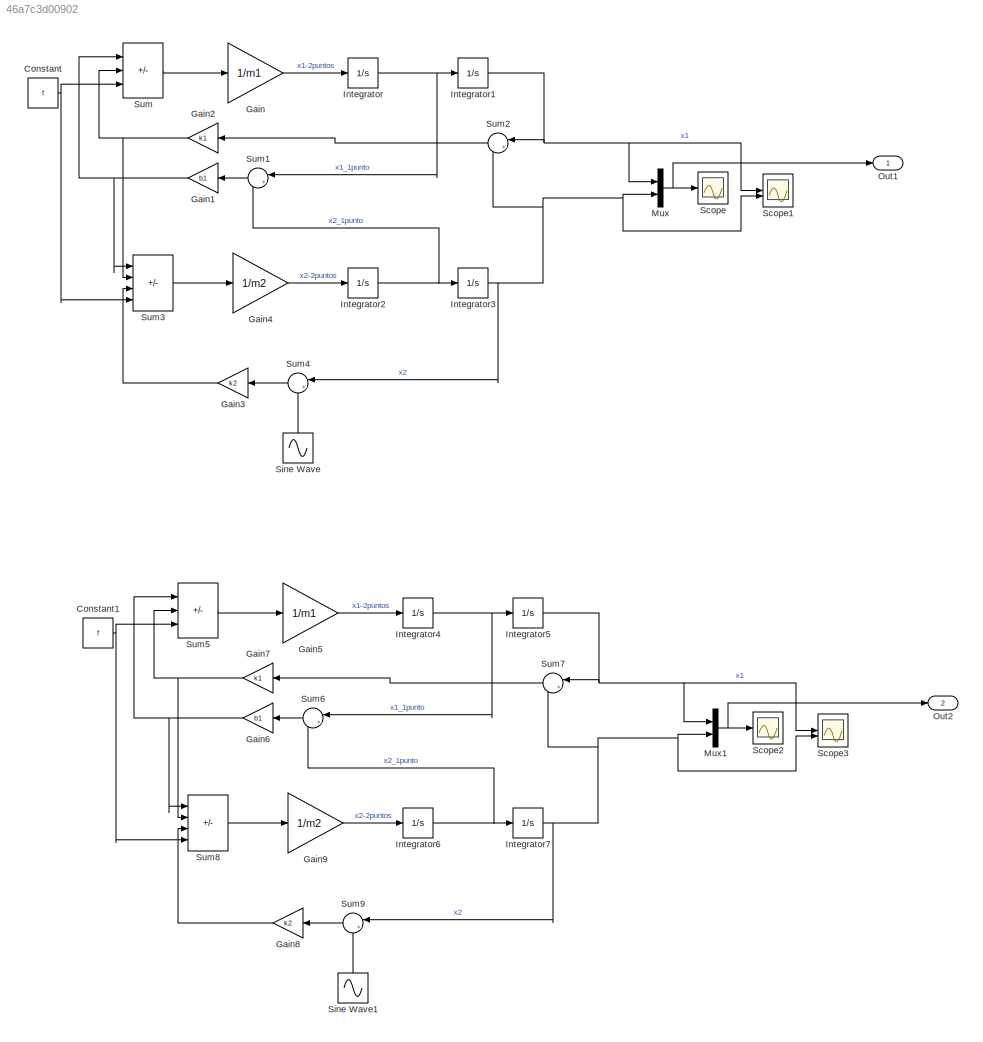
MODEL slx_46a7c3d00902
KIND model
CONFIG AbsTol = auto
CONFIG EnableMultiTasking = off
CONFIG FixedStep = auto
CONFIG MaxStep = auto
CONFIG MinStep = auto
CONFIG RelTol = 1e-3
CONFIG SampleTimeConstraint = Unconstrained
CONFIG SolverName = VariableStepAuto
CONFIG StartTime = 0.0
CONFIG StopTime = 10.0
BLOCK [Constant] Constant
  Value = f
BLOCK [Constant] Constant1
  Value = f
BLOCK [Gain] Gain
  Gain = 1/m1
BLOCK [Gain] Gain1
  Gain = b1
BLOCK [Gain] Gain2
  Gain = k1
BLOCK [Gain] Gain3
  Gain = k2
BLOCK [Gain] Gain4
  Gain = 1/m2
BLOCK [Gain] Gain5
  Gain = 1/m1
BLOCK [Gain] Gain6
  Gain = b1
BLOCK [Gain] Gain7
  Gain = k1
BLOCK [Gain] Gain8
  Gain = k2
BLOCK [Gain] Gain9
  Gain = 1/m2
BLOCK [Integrator] Integrator
BLOCK [Integrator] Integrator1
BLOCK [Integrator] Integrator2
BLOCK [Integrator] Integrator3
BLOCK [Integrator] Integrator4
BLOCK [Integrator] Integrator5
BLOCK [Integrator] Integrator6
BLOCK [Integrator] Integrator7
BLOCK [Mux] Mux
  DisplayOption = bar
  Inputs = 2
BLOCK [Mux] Mux1
  DisplayOption = bar
  Inputs = 2
BLOCK [Outport] Out1
BLOCK [Outport] Out2
  Port = 2
BLOCK [Scope] Scope
  ActiveDisplayYMaximum = 0.013153550265285642
  ActiveDisplayYMinimum = -0.0081004107203286064
  Floating = off
  GraphicalSettings = {"Style":{"BackgroundColor":[0.12941176470588237,0.12941176470588237,0.12941176470588237],"AxesColor":[0.07058823529411765,0.07058823529411765,0.07058823529411765],"LabelsColor":[0.8509803921568627,0.8509803921568627,0.8509803921568627],"PreserveColors":false,"Visible":[true,true],"LineStyle":["-","-"],"LineWidth":[1.5,1.5],"BarWidth":[0.9,0.9],"LineColor":["auto","auto"],"LineFaceAlpha":[1,1],"Li...<+2106ch>
  MultipleDisplayCache = [{"MaxYLimMag":0.013153550265285642,"MaxYLimReal":0.013153550265285642,"MinYLimMag":0,"MinYLimReal":-0.0081004107203286064,"PlotAsMagnitudePhase":false,"ShowGrid":true,"ShowLegend":false,"Title":"%<SignalLabel>","YLabel":""}]
  NumInputPorts = 1
  ScopeFrameLocation = window
  WasSavedAsWebScope = on
  WindowPosition = [377.000000,237.000000,565.000000,424.000000,]
BLOCK [Scope] Scope1
  ActiveDisplayYMaximum = 0.080568186773229425
  ActiveDisplayYMinimum = -0.070244155943805647
  DataLoggingVariableName = ScopeData1
  Floating = off
  GraphicalSettings = {"Style":{"BackgroundColor":[0.12941176470588237,0.12941176470588237,0.12941176470588237],"AxesColor":[0.07058823529411765,0.07058823529411765,0.07058823529411765],"LabelsColor":[0.8509803921568627,0.8509803921568627,0.8509803921568627],"PreserveColors":false,"Visible":[true,true],"LineStyle":["-","-"],"LineWidth":[1.5,1.5],"BarWidth":[0.9,0.9],"LineColor":["auto","auto"],"LineFaceAlpha":[1,1],"Li...<+2416ch>
  LayoutDimensionsString = [2,1]
  MultipleDisplayCache = [{"MaxYLimMag":0.080568186773229425,"MaxYLimReal":0.080568186773229425,"MinYLimMag":0,"MinYLimReal":-0.070244155943805647,"PlotAsMagnitudePhase":false,"ShowGrid":true,"ShowLegend":false,"Title":"%<SignalLabel>","YLabel":""},{"MaxYLimMag":0.070960370743252218,"MaxYLimReal":0.070960370743252218,"MinYLimMag":0,"MinYLimReal":-0.0663918370786346,"PlotAsMagnitudePhase":false,"ShowGrid":true,"ShowLegend"...<+45ch>
  NumInputPorts = 2
  ScopeFrameLocation = window
  WasSavedAsWebScope = on
  WindowPosition = [800.000000,265.000000,560.000000,420.000000,]
BLOCK [Scope] Scope2
  ActiveDisplayYMaximum = 0.013153550265285642
  ActiveDisplayYMinimum = -0.0081004107203286064
  DataLoggingVariableName = ScopeData2
  Floating = off
  GraphicalSettings = {"Style":{"BackgroundColor":[0.12941176470588237,0.12941176470588237,0.12941176470588237],"AxesColor":[0.07058823529411765,0.07058823529411765,0.07058823529411765],"LabelsColor":[0.8509803921568627,0.8509803921568627,0.8509803921568627],"PreserveColors":false,"Visible":[true,true],"LineStyle":["-","-"],"LineWidth":[1.5,1.5],"BarWidth":[0.9,0.9],"LineColor":["auto","auto"],"LineFaceAlpha":[1,1],"Li...<+2106ch>
  MultipleDisplayCache = [{"MaxYLimMag":0.013153550265285642,"MaxYLimReal":0.013153550265285642,"MinYLimMag":0,"MinYLimReal":-0.0081004107203286064,"PlotAsMagnitudePhase":false,"ShowGrid":true,"ShowLegend":false,"Title":"%<SignalLabel>","YLabel":""}]
  NumInputPorts = 1
  ScopeFrameLocation = window
  WasSavedAsWebScope = on
  WindowPosition = [377.000000,237.000000,565.000000,424.000000,]
BLOCK [Scope] Scope3
  ActiveDisplayYMaximum = 0.080568186773229425
  ActiveDisplayYMinimum = -0.070244155943805647
  DataLoggingVariableName = ScopeData3
  Floating = off
  GraphicalSettings = {"Style":{"BackgroundColor":[0.12941176470588237,0.12941176470588237,0.12941176470588237],"AxesColor":[0.07058823529411765,0.07058823529411765,0.07058823529411765],"LabelsColor":[0.8509803921568627,0.8509803921568627,0.8509803921568627],"PreserveColors":false,"Visible":[true,true],"LineStyle":["-","-"],"LineWidth":[1.5,1.5],"BarWidth":[0.9,0.9],"LineColor":["auto","auto"],"LineFaceAlpha":[1,1],"Li...<+2416ch>
  LayoutDimensionsString = [2,1]
  MultipleDisplayCache = [{"MaxYLimMag":0.080568186773229425,"MaxYLimReal":0.080568186773229425,"MinYLimMag":0,"MinYLimReal":-0.070244155943805647,"PlotAsMagnitudePhase":false,"ShowGrid":true,"ShowLegend":false,"Title":"%<SignalLabel>","YLabel":""},{"MaxYLimMag":0.070960370743252218,"MaxYLimReal":0.070960370743252218,"MinYLimMag":0,"MinYLimReal":-0.0663918370786346,"PlotAsMagnitudePhase":false,"ShowGrid":true,"ShowLegend"...<+45ch>
  NumInputPorts = 2
  ScopeFrameLocation = window
  WasSavedAsWebScope = on
  WindowPosition = [800.000000,265.000000,560.000000,420.000000,]
BLOCK [Sin] Sine Wave
  Amplitude = .05
  Frequency = z1
  NameLocation = right
  SampleTime = 0
BLOCK [Sin] Sine Wave1
  Amplitude = .05
  Frequency = z1
  NameLocation = right
  SampleTime = 0
BLOCK [Sum] Sum
  IconShape = rectangular
  Inputs = |--+
BLOCK [Sum] Sum1
  Inputs = |+-
BLOCK [Sum] Sum2
  Inputs = |+-
BLOCK [Sum] Sum3
  IconShape = rectangular
  Inputs = |++--
BLOCK [Sum] Sum4
  Inputs = |+-
BLOCK [Sum] Sum5
  IconShape = rectangular
  Inputs = |--+
BLOCK [Sum] Sum6
  Inputs = |+-
BLOCK [Sum] Sum7
  Inputs = |+-
BLOCK [Sum] Sum8
  IconShape = rectangular
  Inputs = |++--
BLOCK [Sum] Sum9
  Inputs = |+-
NET Constant1:1 -> Sum5:3, Sum8:4
NET Constant:1 -> Sum3:4, Sum:3
NET Gain1:1 -> Sum3:1, Sum:1
NET Gain2:1 -> Sum3:2, Sum:2
LINE Gain3:1 -> Sum3:3
LINE Gain4:1 -> Integrator2:1
LINE Gain5:1 -> Integrator4:1
NET Gain6:1 -> Sum5:1, Sum8:1
NET Gain7:1 -> Sum5:2, Sum8:2
LINE Gain8:1 -> Sum8:3
LINE Gain9:1 -> Integrator6:1
LINE Gain:1 -> Integrator:1
NET Integrator1:1 -> Mux:1, Scope1:1, Sum2:1
NET Integrator2:1 -> Integrator3:1, Sum1:2
NET Integrator3:1 -> Mux:2, Scope1:2, Sum2:2, Sum4:1
NET Integrator4:1 -> Integrator5:1, Sum6:1
NET Integrator5:1 -> Mux1:1, Scope3:1, Sum7:1
NET Integrator6:1 -> Integrator7:1, Sum6:2
NET Integrator7:1 -> Mux1:2, Scope3:2, Sum7:2, Sum9:1
NET Integrator:1 -> Integrator1:1, Sum1:1
NET Mux1:1 -> Out2:1, Scope2:1
NET Mux:1 -> Out1:1, Scope:1
LINE Sine Wave1:1 -> Sum9:2
LINE Sine Wave:1 -> Sum4:2
LINE Sum1:1 -> Gain1:1
LINE Sum2:1 -> Gain2:1
LINE Sum3:1 -> Gain4:1
LINE Sum4:1 -> Gain3:1
LINE Sum5:1 -> Gain5:1
LINE Sum6:1 -> Gain6:1
LINE Sum7:1 -> Gain7:1
LINE Sum8:1 -> Gain9:1
LINE Sum9:1 -> Gain8:1
LINE Sum:1 -> Gain:1
note: NET lines group one-source signal fan-out (src -> all destinations, sorted); 1:1 wires keep LINE
